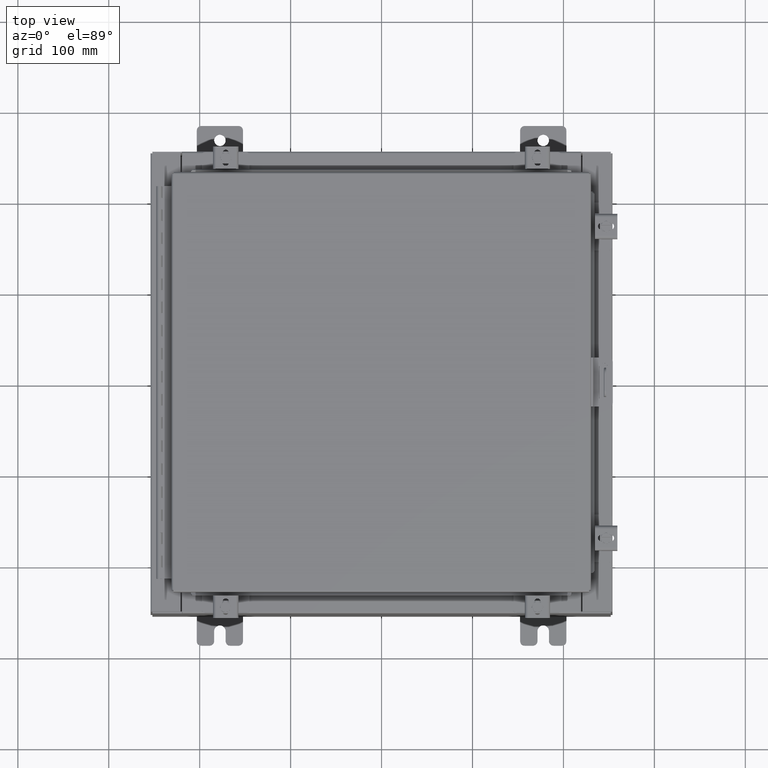
[diagram: clean part render]
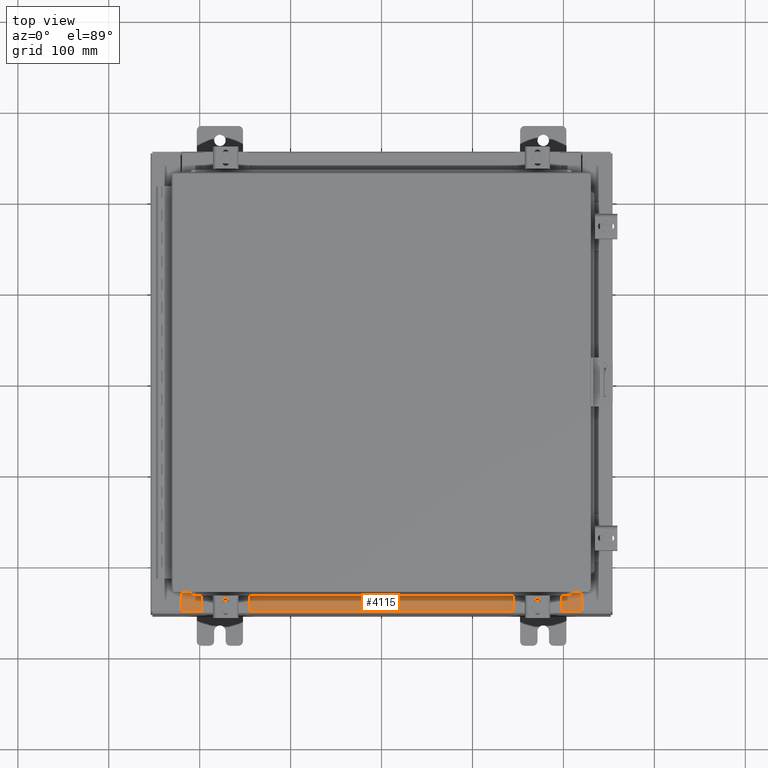
[diagram: same view with one face highlighted and labeled with its STEP entity id]
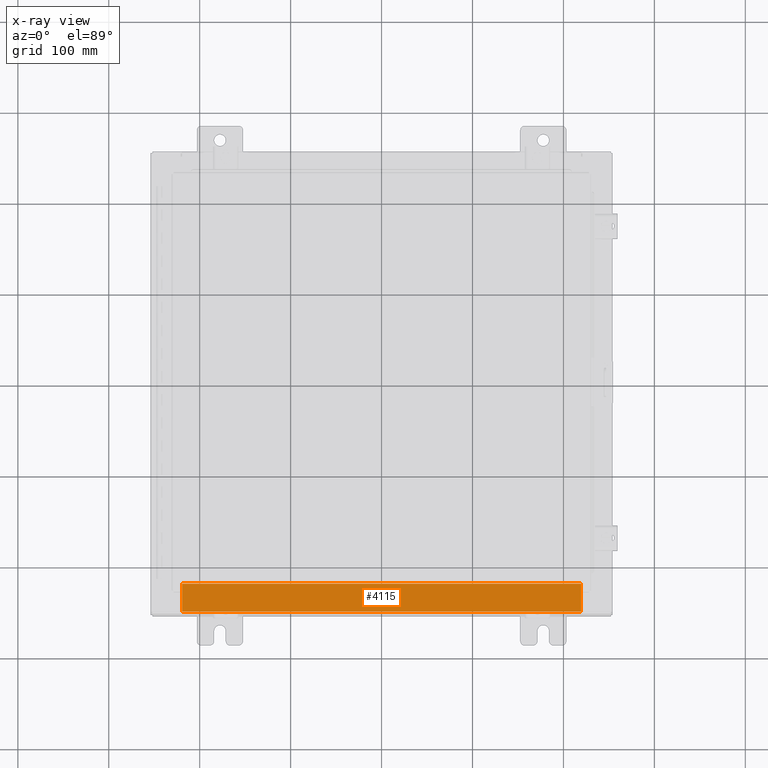
[diagram: x-ray of the same camera — body ghosted, the highlighted face saturated]
A machine part, top view. The second image highlights one B-rep face of the part: STEP entity #4115.
The next image is the same camera in x-ray: the body ghosted, the highlighted face saturated — about 0% of this face is hidden behind the body in this view.
In plain terms, the highlighted planar face has unit normal (-0, -0, 1).
Its self-contained STEP definition (entity closure, byte-faithful):
#332 = CARTESIAN_POINT ( 'NONE',  ( -8.637200000000000000, -0.07469999999999973900, 4.000000000000000000 ) ) ;
#1289 = VERTEX_POINT ( 'NONE', #28281 ) ;
#2184 = LINE ( 'NONE', #7231, #2886 ) ;
#2585 = EDGE_CURVE ( 'NONE', #8601, #1289, #16064, .T. ) ;
#2886 = VECTOR ( 'NONE', #23149, 39.37007874015748100 ) ;
#3031 = VERTEX_POINT ( 'NONE', #17916 ) ;
#3921 = DIRECTION ( 'NONE',  ( 0.0000000000000000000, -1.000000000000000000, 3.566381192773190000E-015 ) ) ;
#4115 = ADVANCED_FACE ( 'NONE', ( #21702 ), #28877, .T. ) ;
#4912 = CARTESIAN_POINT ( 'NONE',  ( -8.637200000000000000, -1.287299999999999200, 4.000000000000004400 ) ) ;
#7231 = CARTESIAN_POINT ( 'NONE',  ( 8.637200000000000000, -1.287299999999999900, 4.000000000000003600 ) ) ;
#7845 = EDGE_CURVE ( 'NONE', #21252, #3031, #22572, .T. ) ;
#8601 = VERTEX_POINT ( 'NONE', #4912 ) ;
#9029 = DIRECTION ( 'NONE',  ( -0.0000000000000000000, -1.000000000000000000, 3.566381192773190000E-015 ) ) ;
#10004 = VECTOR ( 'NONE', #20828, 39.37007874015748100 ) ;
#10648 = ORIENTED_EDGE ( 'NONE', *, *, #25312, .T. ) ;
#13286 = CARTESIAN_POINT ( 'NONE',  ( -2.773851121247567100E-018, -0.08770000000000000000, 4.000000000000000900 ) ) ;
#14542 = CARTESIAN_POINT ( 'NONE',  ( 8.637200000000000000, -0.08769999999999965300, 4.000000000000000000 ) ) ;
#15284 = CARTESIAN_POINT ( 'NONE',  ( 0.0000000000000000000, 1.425992975200418500E-014, 4.000000000000000000 ) ) ;
#16064 = LINE ( 'NONE', #332, #10004 ) ;
#16517 = VECTOR ( 'NONE', #9029, 39.37007874015748100 ) ;
#17018 = EDGE_LOOP ( 'NONE', ( #22293, #19160, #25245, #10648 ) ) ;
#17547 = DIRECTION ( 'NONE',  ( 0.0000000000000000000, 3.566381192773190000E-015, 1.000000000000000000 ) ) ;
#17856 = DIRECTION ( 'NONE',  ( -1.000000000000000000, 3.162886113166609200E-017, -1.128005754888089100E-031 ) ) ;
#17916 = CARTESIAN_POINT ( 'NONE',  ( 8.637200000000000000, -1.287299999999999900, 4.000000000000004400 ) ) ;
#18012 = LINE ( 'NONE', #13286, #29400 ) ;
#18075 = CARTESIAN_POINT ( 'NONE',  ( 8.637200000000000000, -1.300299999999999800, 4.000000000000004400 ) ) ;
#18571 = AXIS2_PLACEMENT_3D ( 'NONE', #15284, #17547, #3921 ) ;
#19160 = ORIENTED_EDGE ( 'NONE', *, *, #22631, .F. ) ;
#20828 = DIRECTION ( 'NONE',  ( -0.0000000000000000000, 1.000000000000000000, -3.566381192773190000E-015 ) ) ;
#21252 = VERTEX_POINT ( 'NONE', #14542 ) ;
#21702 = FACE_OUTER_BOUND ( 'NONE', #17018, .T. ) ;
#22293 = ORIENTED_EDGE ( 'NONE', *, *, #2585, .F. ) ;
#22572 = LINE ( 'NONE', #18075, #16517 ) ;
#22631 = EDGE_CURVE ( 'NONE', #3031, #8601, #2184, .T. ) ;
#23149 = DIRECTION ( 'NONE',  ( -1.000000000000000000, 0.0000000000000000000, 0.0000000000000000000 ) ) ;
#25245 = ORIENTED_EDGE ( 'NONE', *, *, #7845, .F. ) ;
#25312 = EDGE_CURVE ( 'NONE', #21252, #1289, #18012, .T. ) ;
#28281 = CARTESIAN_POINT ( 'NONE',  ( -8.637200000000000000, -0.08770000000000000000, 4.000000000000000000 ) ) ;
#28877 = PLANE ( 'NONE',  #18571 ) ;
#29400 = VECTOR ( 'NONE', #17856, 39.37007874015748100 ) ;